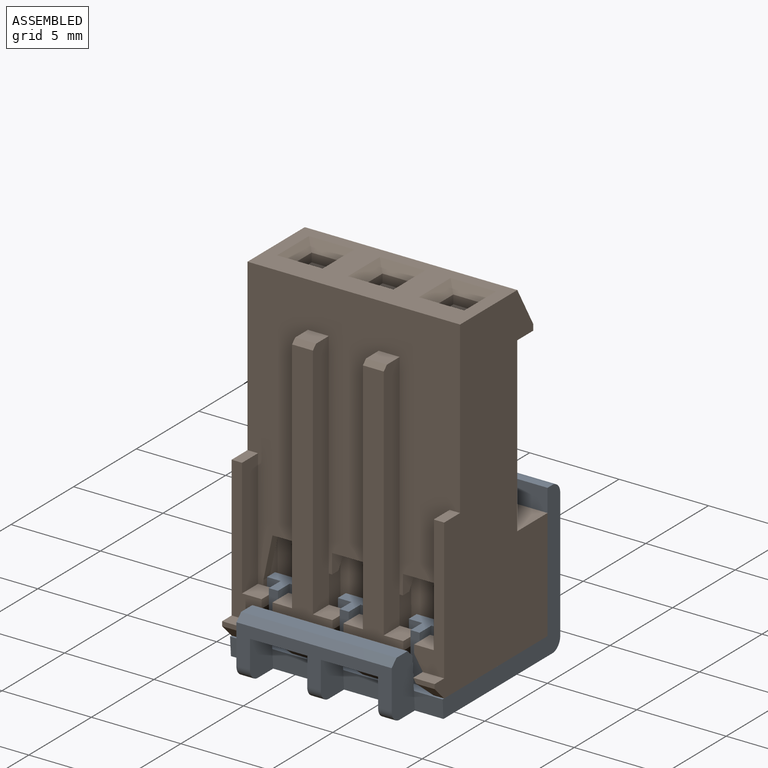
[diagram: assembled view]
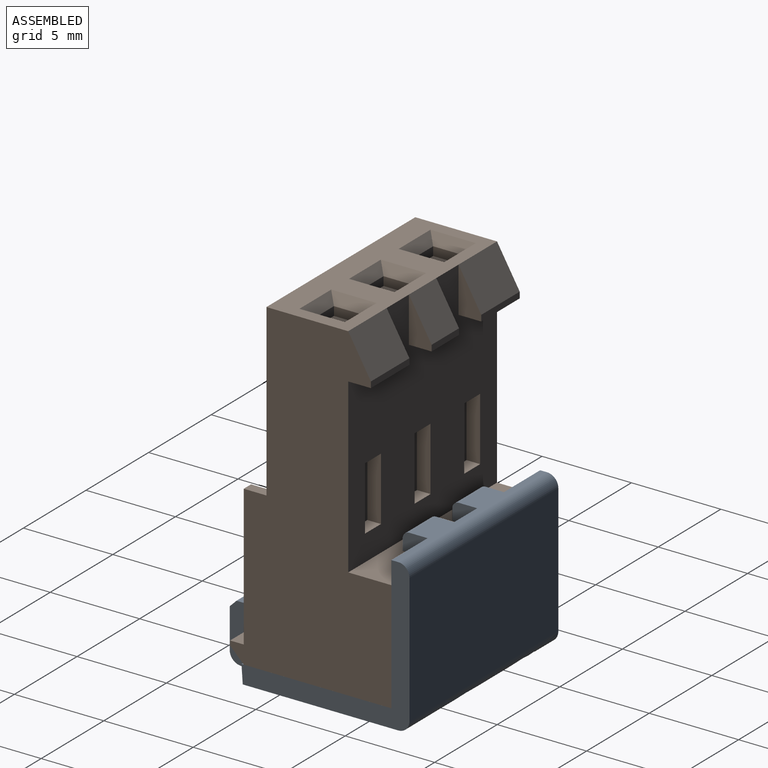
[diagram: assembled view, second angle]
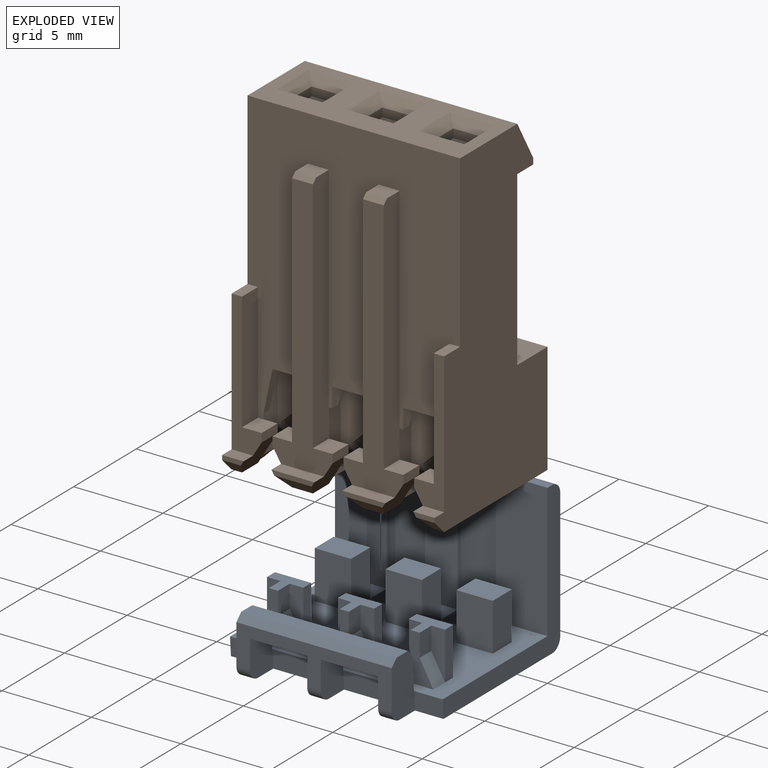
[diagram: exploded view]
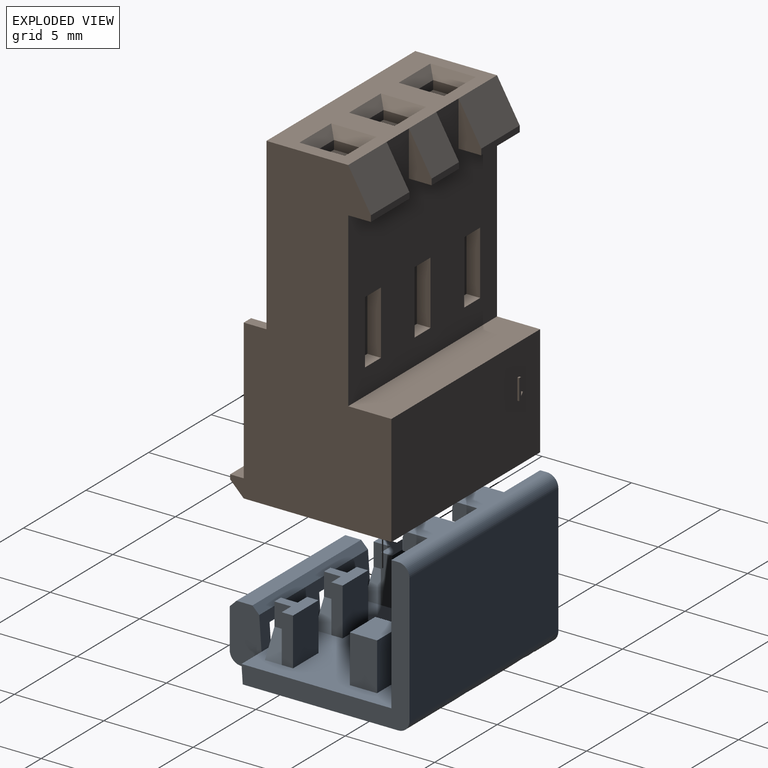
[diagram: exploded view, second angle]
ASSEMBLY  parts=2 mates=3
PART A: 97 faces, bbox 11.9x11.2x8.5 mm
  f0: plane 8.69x2.21mm, normal (0,-1,0), area 9.1mm2, adj f1,f7,f9,f28,f29,f30,f31,f32
  f1: plane 8.69x0.38mm, normal (0,-0.71,0.71), area 4.7mm2, adj f0,f2,f28,f36
  f2: plane 8.69x0.89mm, normal (0,0,1), area 7.7mm2, adj f1,f8,f28,f36
  f3: plane 2.13x1.53mm, normal (0,0,-1), area 3.3mm2, adj f4,f38,f39,f41,f54,f56
  f4: plane 2.13x0.64mm, normal (0,-1,0), area 1.4mm2, adj f3,f39,f40,f41
  f5: plane 2.13x0.64mm, normal (0,-1,0), area 1.4mm2, adj f6,f42,f43,f44
  f6: plane 2.13x1.53mm, normal (0,0,-1), area 3.3mm2, adj f5,f37,f43,f44,f45,f47
  f7: plane 3.2x1.7mm, normal (0,0,-1), area 5.4mm2, adj f0,f33,f34,f50
  f8: plane 8.69x0.38mm, normal (0,0.71,0.71), area 4.7mm2, adj f2,f28,f36,f50
  f9: plane 3.2x1.7mm, normal (0,0,-1), area 5.4mm2, adj f0,f30,f31,f50
  f10: plane 2.03x1.52mm, normal (0,0,1), area 3.1mm2, adj f58,f59,f60,f61
  f11: plane 2.03x1.52mm, normal (0,0,1), area 3.1mm2, adj f62,f63,f64,f65
  f12: plane 2.03x1.52mm, normal (0,0,1), area 3.1mm2, adj f66,f67,f68,f69
  f13: plane 2.67x0.76mm, normal (0,-1,0), area 1.5mm2, adj f14,f15,f72,f73
  f14: plane 1.27x0.94mm, normal (1,0,0), area 1.2mm2, adj f13,f15,f73,f74
  f15: plane 2.03x1.58mm, normal (0,0,1), area 1.8mm2, adj f13,f14,f16,f17,f70,f71,f72,f74
  f16: plane 2.67x0.76mm, normal (0,-1,0), area 1.5mm2, adj f15,f17,f70,f75
  f17: plane 1.27x0.94mm, normal (-1,0,0), area 1.2mm2, adj f15,f16,f74,f75
  f18: plane 2.67x0.76mm, normal (0,-1,0), area 1.5mm2, adj f19,f22,f76,f77
  f19: plane 1.27x0.94mm, normal (1,0,0), area 1.2mm2, adj f18,f22,f77,f78
  f20: plane 1.27x0.94mm, normal (-1,0,0), area 1.2mm2, adj f21,f22,f78,f79
  f21: plane 2.67x0.76mm, normal (0,-1,0), area 1.5mm2, adj f20,f22,f79,f80
  f22: plane 2.03x1.58mm, normal (0,0,1), area 1.8mm2, adj f18,f19,f20,f21,f76,f78,f80,f81
  f23: plane 2.67x0.76mm, normal (0,-1,0), area 1.5mm2, adj f24,f27,f82,f83
  f24: plane 1.27x0.94mm, normal (1,0,0), area 1.2mm2, adj f23,f27,f83,f84
  f25: plane 1.27x0.94mm, normal (-1,0,0), area 1.2mm2, adj f26,f27,f84,f85
  f26: plane 2.67x0.76mm, normal (0,-1,0), area 1.5mm2, adj f25,f27,f85,f86
  f27: plane 2.03x1.58mm, normal (0,0,1), area 1.8mm2, adj f23,f24,f25,f26,f82,f84,f86,f87
  f28: plane 3.23x1.85mm, normal (1,0,0), area 5.4mm2, adj f0,f1,f2,f8,f29,f50,f51,f89
  f29: revolved ~0.76x0.64mm, area 0.8mm2, adj f0,f28,f30,f89
  f30: plane 2.21x1.85mm, normal (-1,0,0), area 3.8mm2, adj f0,f9,f29,f49,f50,f89
  f31: plane 2.21x1.85mm, normal (1,0,0), area 3.8mm2, adj f0,f9,f32,f49,f50,f89
  f32: revolved ~0.76x0.64mm, area 0.8mm2, adj f0,f31,f33,f89
  f33: plane 2.21x1.85mm, normal (-1,0,0), area 3.8mm2, adj f0,f7,f32,f48,f50,f89
  f34: plane 2.21x1.85mm, normal (1,0,0), area 3.8mm2, adj f0,f7,f35,f48,f50,f89
  f35: revolved ~0.76x0.64mm, area 0.8mm2, adj f0,f34,f36,f89
  f36: plane 3.23x1.85mm, normal (-1,0,0), area 5.4mm2, adj f0,f1,f2,f8,f35,f50,f88,f89
  f37: plane 7.49x2.13mm, normal (0,-1,-0.03), area 16mm2, adj f6,f45,f47,f90
  f38: plane 7.49x2.13mm, normal (0,-1,-0.03), area 16mm2, adj f3,f54,f56,f90
  f39: plane 1.4x1.02mm, normal (-1,0,0), area 1.4mm2, adj f3,f4,f40,f57,f93
  f40: revolved ~2.13x0.38mm, area 1.3mm2, adj f4,f39,f41,f93
  f41: plane 1.4x1.02mm, normal (1,0,0), area 1.4mm2, adj f3,f4,f40,f53,f93
  f42: revolved ~2.13x0.38mm, area 1.3mm2, adj f5,f43,f44,f93
  f43: plane 1.4x1.02mm, normal (1,0,0), area 1.4mm2, adj f5,f6,f42,f57,f93
  f44: plane 1.4x1.02mm, normal (-1,0,0), area 1.4mm2, adj f5,f6,f42,f93,f94
  f45: plane 7.49x1.78mm, normal (-1,0,0), area 3.3mm2, adj f6,f37,f46,f57,f89,f95
  f46: plane 2.13x1.02mm, normal (0,1,0), area 2.2mm2, adj f45,f47,f89,f95
  f47: plane 7.49x1.78mm, normal (1,0,0), area 3.3mm2, adj f6,f37,f46,f89,f94,f95
  f48: plane 3.2x1.02mm, normal (0,-1,-0.07), area 3.3mm2, adj f33,f34,f89,f95
  f49: plane 3.2x1.02mm, normal (0,-1,-0.07), area 3.3mm2, adj f30,f31,f89,f95
  f50: plane 8.69x1.83mm, normal (0,1,0.07), area 8.3mm2, adj f7,f8,f9,f28,f30,f31,f33,f34
  f51: plane 1.6x1.02mm, normal (0,-1,-0.07), area 1.6mm2, adj f28,f52,f89,f95
  f52: plane 9.4x8.51mm, normal (1,0,0), area 17mm2, adj f51,f53,f89,f90,f91,f92,f93,f95
  f53: plane 7.49x2.9mm, normal (0,-1,0), area 21.7mm2, adj f41,f52,f54,f93,f95
  f54: plane 7.49x1.78mm, normal (-1,0,0), area 3.3mm2, adj f3,f38,f53,f55,f89,f95
  f55: plane 2.13x1.02mm, normal (0,1,0), area 2.2mm2, adj f54,f56,f89,f95
  f56: plane 7.49x1.78mm, normal (1,0,0), area 3.3mm2, adj f3,f38,f55,f57,f89,f95
  f57: plane 7.49x1.83mm, normal (0,-1,0), area 13.7mm2, adj f39,f43,f45,f56,f93,f95
  f58: plane 2.67x1.52mm, normal (-1,0,0), area 4.1mm2, adj f10,f59,f61,f95
  f59: plane 2.67x2.03mm, normal (0,1,0), area 5.4mm2, adj f10,f58,f60,f95
  f60: plane 2.67x1.52mm, normal (1,0,0), area 4.1mm2, adj f10,f59,f61,f95
  f61: plane 2.67x2.03mm, normal (0,-1,0), area 5.4mm2, adj f10,f58,f60,f95
  f62: plane 2.67x1.52mm, normal (-1,0,0), area 4.1mm2, adj f11,f63,f65,f95
  f63: plane 2.67x2.03mm, normal (0,1,0), area 5.4mm2, adj f11,f62,f64,f95
  f64: plane 2.67x1.52mm, normal (1,0,0), area 4.1mm2, adj f11,f63,f65,f95
  f65: plane 2.67x2.03mm, normal (0,-1,0), area 5.4mm2, adj f11,f62,f64,f95
  f66: plane 2.67x1.52mm, normal (-1,0,0), area 4.1mm2, adj f12,f67,f69,f95
  f67: plane 2.67x2.03mm, normal (0,1,0), area 5.4mm2, adj f12,f66,f68,f95
  f68: plane 2.67x1.52mm, normal (1,0,0), area 4.1mm2, adj f12,f67,f69,f95
  f69: plane 2.67x2.03mm, normal (0,-1,0), area 5.4mm2, adj f12,f66,f68,f95
  f70: plane 2.67x0.64mm, normal (-1,0,0), area 1.7mm2, adj f15,f16,f71,f95
  f71: plane 2.67x2.03mm, normal (0,1,0), area 5.4mm2, adj f15,f70,f72,f95
  f72: plane 2.67x0.64mm, normal (1,0,0), area 1.7mm2, adj f13,f15,f71,f95
  f73: plane 1.4x0.94mm, normal (0.88,0,0.48), area 1.5mm2, adj f13,f14,f74,f95
  f74: plane 2.67x2.03mm, normal (0,-1,0), area 2.4mm2, adj f14,f15,f17,f73,f75,f95
  f75: plane 1.4x0.94mm, normal (-0.88,0,0.48), area 1.5mm2, adj f16,f17,f74,f95
  f76: plane 2.67x0.64mm, normal (1,0,0), area 1.7mm2, adj f18,f22,f81,f95
  f77: plane 1.4x0.94mm, normal (0.88,0,0.48), area 1.5mm2, adj f18,f19,f78,f95
  f78: plane 2.67x2.03mm, normal (0,-1,0), area 2.4mm2, adj f19,f20,f22,f77,f79,f95
  f79: plane 1.4x0.94mm, normal (-0.88,0,0.48), area 1.5mm2, adj f20,f21,f78,f95
  f80: plane 2.67x0.64mm, normal (-1,0,0), area 1.7mm2, adj f21,f22,f81,f95
  f81: plane 2.67x2.03mm, normal (0,1,0), area 5.4mm2, adj f22,f76,f80,f95
  f82: plane 2.67x0.64mm, normal (1,0,0), area 1.7mm2, adj f23,f27,f87,f95
  f83: plane 1.4x0.94mm, normal (0.88,0,0.48), area 1.5mm2, adj f23,f24,f84,f95
  f84: plane 2.67x2.03mm, normal (0,-1,0), area 2.4mm2, adj f24,f25,f27,f83,f85,f95
  f85: plane 1.4x0.94mm, normal (-0.88,0,0.48), area 1.5mm2, adj f25,f26,f84,f95
  f86: plane 2.67x0.64mm, normal (-1,0,0), area 1.7mm2, adj f26,f27,f87,f95
  f87: plane 2.67x2.03mm, normal (0,1,0), area 5.4mm2, adj f27,f82,f86,f95
  f88: plane 1.6x1.02mm, normal (0,-1,-0.07), area 1.6mm2, adj f36,f89,f95,f96
  f89: plane 11.89x9.91mm, normal (0,0,-1), area 98.5mm2, adj f28,f29,f30,f31,f32,f33,f34,f35
  f90: revolved ~11.89x0.64mm, area 11.9mm2, adj f37,f38,f52,f89,f91,f96
  f91: plane 11.89x7.24mm, normal (0,1,0), area 86.1mm2, adj f52,f90,f92,f96
  f92: revolved ~11.89x0.64mm, area 11.9mm2, adj f52,f91,f93,f96
  f93: plane 11.89x1.4mm, normal (0,0,1), area 8.9mm2, adj f39,f40,f41,f42,f43,f44,f52,f53
  f94: plane 7.49x2.9mm, normal (0,-1,0), area 21.7mm2, adj f44,f47,f93,f95,f96
  f95: plane 11.89x8.38mm, normal (0,0,1), area 74.8mm2, adj f45,f46,f47,f48,f49,f50,f51,f52
  f96: plane 9.4x8.51mm, normal (-1,0,0), area 16.9mm2, adj f88,f89,f90,f91,f92,f93,f94,f95
PART B: 291 faces, bbox 11.9x9.1x18.4 mm
  f0: plane 0.32x0.15mm, normal (0,0,-1), area 0mm2, adj f8,f9,f78,f79
  f1: plane 0.32x0.15mm, normal (0,0,-1), area 0mm2, adj f20,f21,f81,f83
  f2: plane 0.32x0.15mm, normal (0,0,-1), area 0mm2, adj f26,f27,f89,f90
  f3: plane 0.32x0.15mm, normal (0,0,-1), area 0mm2, adj f38,f39,f92,f94
  f4: plane 0.32x0.15mm, normal (0,0,-1), area 0mm2, adj f44,f45,f100,f101
  f5: plane 0.32x0.15mm, normal (0,0,-1), area 0mm2, adj f56,f57,f103,f105
  f6: plane 0.58x0.58mm, normal (-0.71,0,-0.71), area 0.3mm2, adj f7,f76,f78,f79
  f7: plane 1.78x0.34mm, normal (-1,0,0), area 0.6mm2, adj f6,f8,f78,f79
  f8: plane 0.76x0.33mm, normal (-0.93,0,-0.36), area 0.3mm2, adj f0,f7,f78,f79
  f9: plane 0.76x0.33mm, normal (0.93,0,-0.36), area 0.3mm2, adj f0,f10,f78,f79
  f10: plane 1.78x0.34mm, normal (1,0,0), area 0.6mm2, adj f9,f11,f78,f79
  f11: plane 0.58x0.58mm, normal (0.71,0,-0.71), area 0.3mm2, adj f10,f77,f78,f79
  f12: revolved ~0.7x0.69mm, area 0.7mm2, adj f13,f76,f78,f80
  f13: plane 1.14x0.64mm, normal (0,0,-1), area 0.7mm2, adj f12,f17,f76,f80
  f14: revolved ~0.7x0.69mm, area 0.7mm2, adj f15,f77,f78,f82
  f15: plane 1.14x0.64mm, normal (0,0,-1), area 0.7mm2, adj f14,f16,f77,f82
  f16: revolved ~0.7x0.7mm, area 0.7mm2, adj f15,f77,f82,f83
  f17: revolved ~0.7x0.7mm, area 0.7mm2, adj f13,f76,f80,f83
  f18: plane 0.58x0.58mm, normal (-0.71,0,-0.71), area 0.3mm2, adj f19,f76,f81,f83
  f19: plane 1.78x0.32mm, normal (-1,0,0), area 0.6mm2, adj f18,f20,f81,f83
  f20: plane 0.76x0.32mm, normal (-0.93,0,-0.36), area 0.3mm2, adj f1,f19,f81,f83
  f21: plane 0.76x0.32mm, normal (0.93,0,-0.36), area 0.3mm2, adj f1,f22,f81,f83
  f22: plane 1.78x0.32mm, normal (1,0,0), area 0.6mm2, adj f21,f23,f81,f83
  f23: plane 0.58x0.58mm, normal (0.71,0,-0.71), area 0.3mm2, adj f22,f77,f81,f83
  f24: plane 0.58x0.58mm, normal (-0.71,0,-0.71), area 0.3mm2, adj f25,f88,f89,f90
  f25: plane 1.78x0.34mm, normal (-1,0,0), area 0.6mm2, adj f24,f26,f89,f90
  f26: plane 0.76x0.33mm, normal (-0.93,0,-0.36), area 0.3mm2, adj f2,f25,f89,f90
  f27: plane 0.76x0.33mm, normal (0.93,0,-0.36), area 0.3mm2, adj f2,f28,f89,f90
  f28: plane 1.78x0.34mm, normal (1,0,0), area 0.6mm2, adj f27,f29,f89,f90
  f29: plane 0.58x0.58mm, normal (0.71,0,-0.71), area 0.3mm2, adj f28,f87,f89,f90
  f30: revolved ~0.7x0.69mm, area 0.7mm2, adj f31,f88,f89,f91
  f31: plane 1.14x0.64mm, normal (0,0,-1), area 0.7mm2, adj f30,f35,f88,f91
  f32: revolved ~0.7x0.69mm, area 0.7mm2, adj f33,f87,f89,f93
  f33: plane 1.14x0.64mm, normal (0,0,-1), area 0.7mm2, adj f32,f34,f87,f93
  f34: revolved ~0.7x0.7mm, area 0.7mm2, adj f33,f87,f93,f94
  f35: revolved ~0.7x0.7mm, area 0.7mm2, adj f31,f88,f91,f94
  f36: plane 0.58x0.58mm, normal (-0.71,0,-0.71), area 0.3mm2, adj f37,f88,f92,f94
  f37: plane 1.78x0.32mm, normal (-1,0,0), area 0.6mm2, adj f36,f38,f92,f94
  f38: plane 0.76x0.32mm, normal (-0.93,0,-0.36), area 0.3mm2, adj f3,f37,f92,f94
  f39: plane 0.76x0.32mm, normal (0.93,0,-0.36), area 0.3mm2, adj f3,f40,f92,f94
  f40: plane 1.78x0.32mm, normal (1,0,0), area 0.6mm2, adj f39,f41,f92,f94
  f41: plane 0.58x0.58mm, normal (0.71,0,-0.71), area 0.3mm2, adj f40,f87,f92,f94
  f42: plane 0.58x0.58mm, normal (-0.71,0,-0.71), area 0.3mm2, adj f43,f98,f100,f101
  f43: plane 1.78x0.34mm, normal (-1,0,0), area 0.6mm2, adj f42,f44,f100,f101
  f44: plane 0.76x0.33mm, normal (-0.93,0,-0.36), area 0.3mm2, adj f4,f43,f100,f101
  f45: plane 0.76x0.33mm, normal (0.93,0,-0.36), area 0.3mm2, adj f4,f46,f100,f101
  f46: plane 1.78x0.34mm, normal (1,0,0), area 0.6mm2, adj f45,f47,f100,f101
  f47: plane 0.58x0.58mm, normal (0.71,0,-0.71), area 0.3mm2, adj f46,f99,f100,f101
  f48: revolved ~0.7x0.69mm, area 0.7mm2, adj f49,f98,f100,f102
  f49: plane 1.14x0.64mm, normal (0,0,-1), area 0.7mm2, adj f48,f53,f98,f102
  f50: revolved ~0.7x0.69mm, area 0.7mm2, adj f51,f99,f100,f104
  f51: plane 1.14x0.64mm, normal (0,0,-1), area 0.7mm2, adj f50,f52,f99,f104
  f52: revolved ~0.7x0.7mm, area 0.7mm2, adj f51,f99,f104,f105
  f53: revolved ~0.7x0.7mm, area 0.7mm2, adj f49,f98,f102,f105
  f54: plane 0.58x0.58mm, normal (-0.71,0,-0.71), area 0.3mm2, adj f55,f98,f103,f105
  f55: plane 1.78x0.32mm, normal (-1,0,0), area 0.6mm2, adj f54,f56,f103,f105
  f56: plane 0.76x0.32mm, normal (-0.93,0,-0.36), area 0.3mm2, adj f5,f55,f103,f105
  f57: plane 0.76x0.32mm, normal (0.93,0,-0.36), area 0.3mm2, adj f5,f58,f103,f105
  f58: plane 1.78x0.32mm, normal (1,0,0), area 0.6mm2, adj f57,f59,f103,f105
  f59: plane 0.58x0.58mm, normal (0.71,0,-0.71), area 0.3mm2, adj f58,f99,f103,f105
  f60: revolved ~0.64x0.37mm, area 0.3mm2, adj f98,f101,f102,f110
  f61: revolved ~0.64x0.37mm, area 0.3mm2, adj f98,f102,f103,f112
  f62: revolved ~0.64x0.37mm, area 0.3mm2, adj f99,f101,f104,f117
  f63: revolved ~0.64x0.37mm, area 0.3mm2, adj f99,f103,f104,f119
  f64: revolved ~0.64x0.37mm, area 0.3mm2, adj f88,f90,f91,f131
  f65: revolved ~0.64x0.37mm, area 0.3mm2, adj f88,f91,f92,f133
  f66: revolved ~0.64x0.37mm, area 0.3mm2, adj f87,f90,f93,f139
  f67: revolved ~0.64x0.37mm, area 0.3mm2, adj f87,f92,f93,f141
  f68: revolved ~0.64x0.37mm, area 0.3mm2, adj f76,f79,f80,f153
  f69: revolved ~0.64x0.37mm, area 0.3mm2, adj f76,f80,f81,f155
  f70: revolved ~0.64x0.37mm, area 0.3mm2, adj f77,f79,f82,f159
  f71: revolved ~0.64x0.37mm, area 0.3mm2, adj f77,f81,f82,f161
  f72: plane 1.52x1.52mm, normal (0,0,1), area 2.3mm2, adj f177,f178,f179,f180
  f73: plane 1.52x1.52mm, normal (0,0,1), area 2.3mm2, adj f181,f182,f183,f184
  f74: plane 1.52x1.52mm, normal (0,0,1), area 2.3mm2, adj f185,f186,f187,f188
  f75: plane 2.39x0.51mm, normal (0,1,0), area 0.6mm2, adj f193,f194,f195
  f76: plane 3.96x2.54mm, normal (-1,0,0), area 7.2mm2, adj f6,f12,f13,f17,f18,f68,f69,f78
  f77: plane 3.96x2.54mm, normal (1,0,0), area 7.2mm2, adj f11,f14,f15,f16,f23,f70,f71,f78
  f78: plane 3.27x3.18mm, normal (0,-1,-0.01), area 7.9mm2, adj f0,f6,f7,f8,f9,f10,f11,f12
  f79: plane 3.26x3.18mm, normal (0,1,0.01), area 7.9mm2, adj f0,f6,f7,f8,f9,f10,f11,f68
  f80: plane 3.96x2.58mm, normal (1,0,0), area 3mm2, adj f12,f13,f17,f68,f69,f78,f79,f81
  f81: plane 3.26x3.18mm, normal (0,-1,0), area 7.9mm2, adj f1,f18,f19,f20,f21,f22,f23,f69
  f82: plane 3.96x2.58mm, normal (-1,0,0), area 3mm2, adj f14,f15,f16,f70,f71,f78,f79,f81
  f83: plane 3.26x3.18mm, normal (0,1,0), area 7.9mm2, adj f1,f16,f17,f18,f19,f20,f21,f22
  f84: plane 1.27x1.09mm, normal (0,0,1), area 1.4mm2, adj f145,f148,f149,f197
  f85: plane 1.27x1.09mm, normal (0,0,1), area 1.4mm2, adj f143,f144,f145,f199
  f86: plane 1.17x0.25mm, normal (0,-0.71,0.71), area 0.4mm2, adj f145,f197,f198,f199
  f87: plane 3.96x2.54mm, normal (1,0,0), area 7.2mm2, adj f29,f32,f33,f34,f41,f66,f67,f89
  f88: plane 3.96x2.54mm, normal (-1,0,0), area 7.2mm2, adj f24,f30,f31,f35,f36,f64,f65,f89
  f89: plane 3.27x3.18mm, normal (0,-1,-0.01), area 7.9mm2, adj f2,f24,f25,f26,f27,f28,f29,f30
  f90: plane 3.26x3.18mm, normal (0,1,0.01), area 7.9mm2, adj f2,f24,f25,f26,f27,f28,f29,f64
  f91: plane 3.96x2.58mm, normal (1,0,0), area 3mm2, adj f30,f31,f35,f64,f65,f89,f90,f92
  f92: plane 3.26x3.18mm, normal (0,-1,0), area 7.9mm2, adj f3,f36,f37,f38,f39,f40,f41,f65
  f93: plane 3.96x2.58mm, normal (-1,0,0), area 3mm2, adj f32,f33,f34,f66,f67,f89,f90,f92
  f94: plane 3.26x3.18mm, normal (0,1,0), area 7.9mm2, adj f3,f34,f35,f36,f37,f38,f39,f40
  f95: plane 1.27x1.09mm, normal (0,0,1), area 1.4mm2, adj f123,f126,f127,f203
  f96: plane 1.27x1.09mm, normal (0,0,1), area 1.4mm2, adj f121,f122,f123,f205
  f97: plane 1.17x0.25mm, normal (0,-0.71,0.71), area 0.4mm2, adj f123,f203,f204,f205
  f98: plane 3.96x2.54mm, normal (-1,0,0), area 7.2mm2, adj f42,f48,f49,f53,f54,f60,f61,f100
  f99: plane 3.96x2.54mm, normal (1,0,0), area 7.2mm2, adj f47,f50,f51,f52,f59,f62,f63,f100
  f100: plane 3.27x3.18mm, normal (0,-1,-0.01), area 7.9mm2, adj f4,f42,f43,f44,f45,f46,f47,f48
  f101: plane 3.26x3.18mm, normal (0,1,0.01), area 7.9mm2, adj f4,f42,f43,f44,f45,f46,f47,f60
  f102: plane 3.96x2.58mm, normal (1,0,0), area 3mm2, adj f48,f49,f53,f60,f61,f100,f101,f103
  f103: plane 3.26x3.18mm, normal (0,-1,0), area 7.9mm2, adj f5,f54,f55,f56,f57,f58,f59,f61
  f104: plane 3.96x2.58mm, normal (-1,0,0), area 3mm2, adj f50,f51,f52,f62,f63,f100,f101,f103
  f105: plane 3.26x3.18mm, normal (0,1,0), area 7.9mm2, adj f5,f52,f53,f54,f55,f56,f57,f58
  f106: plane 2.39x0.51mm, normal (0,1,0), area 0.6mm2, adj f189,f207,f208
  f107: plane 0.84x0.56mm, normal (0,0.87,-0.5), area 0.4mm2, adj f108,f189,f213,f214,f282
  f108: plane 4.11x0.56mm, normal (0,1,0), area 2.3mm2, adj f107,f189,f207,f214
  f109: plane 2.68x0.7mm, normal (0,-1,0), area 1.9mm2, adj f98,f110,f207,f214
  f110: plane 0.95x0.7mm, normal (0,-0.97,-0.26), area 0.7mm2, adj f60,f98,f109,f111,f214
  f111: plane 1.3x0.06mm, normal (0,0,-1), area 0.1mm2, adj f102,f110,f112,f214
  f112: plane 0.95x0.7mm, normal (0,0.97,-0.26), area 0.7mm2, adj f61,f98,f111,f113,f214
  f113: plane 2.68x0.7mm, normal (0,1,0), area 1.9mm2, adj f98,f112,f207,f214
  f114: plane 0.51x0.43mm, normal (0,0,-1), area 0.2mm2, adj f115,f122,f206,f216,f277
  f115: plane 1.09x0.63mm, normal (0,0.87,-0.5), area 0.5mm2, adj f114,f206,f207,f216
  f116: plane 2.68x0.7mm, normal (0,-1,0), area 1.9mm2, adj f99,f117,f207,f216
  f117: plane 0.95x0.7mm, normal (0,-0.97,-0.26), area 0.7mm2, adj f62,f99,f116,f118,f216
  f118: plane 1.3x0.06mm, normal (0,0,-1), area 0.1mm2, adj f104,f117,f119,f216
  f119: plane 0.95x0.7mm, normal (0,0.97,-0.26), area 0.7mm2, adj f63,f99,f118,f120,f216
  f120: plane 2.68x0.7mm, normal (0,1,0), area 1.9mm2, adj f99,f119,f207,f216
  f121: plane 1.27x0.48mm, normal (1,0,0), area 0.6mm2, adj f96,f122,f123,f217
  f122: plane 3.86x1.35mm, normal (0,1,0), area 2.5mm2, adj f96,f114,f121,f205,f216,f217,f282
  f123: plane 14.61x3.35mm, normal (0,-1,0), area 19.5mm2, adj f95,f96,f97,f121,f124,f126,f203,f205
  f124: plane 2.4x0.76mm, normal (0,0,1), area 1.8mm2, adj f123,f125,f217,f219
  f125: plane 2.4x0.25mm, normal (0,-1,0), area 0.6mm2, adj f124,f217,f218,f219
  f126: plane 1.27x0.48mm, normal (-1,0,0), area 0.6mm2, adj f95,f123,f127,f219
  f127: plane 3.86x1.35mm, normal (0,1,0), area 2.5mm2, adj f95,f126,f128,f203,f219,f220,f282
  f128: plane 0.51x0.43mm, normal (0,0,-1), area 0.2mm2, adj f127,f129,f202,f220,f277
  f129: plane 1.09x0.63mm, normal (0,0.87,-0.5), area 0.5mm2, adj f128,f201,f202,f220
  f130: plane 2.68x0.7mm, normal (0,-1,0), area 1.9mm2, adj f88,f131,f201,f220
  f131: plane 0.95x0.7mm, normal (0,-0.97,-0.26), area 0.7mm2, adj f64,f88,f130,f132,f220
  f132: plane 1.3x0.06mm, normal (0,0,-1), area 0.1mm2, adj f91,f131,f133,f220
  f133: plane 0.95x0.7mm, normal (0,0.97,-0.26), area 0.7mm2, adj f65,f88,f132,f134,f220
  f134: plane 2.68x0.7mm, normal (0,1,0), area 1.9mm2, adj f88,f133,f201,f220
  f135: plane 3.81x0.33mm, normal (0,-1,0), area 1.3mm2, adj f201,f220,f221,f222
  f136: plane 0.51x0.43mm, normal (0,0,-1), area 0.2mm2, adj f137,f144,f200,f224,f277
  f137: plane 1.09x0.63mm, normal (0,0.87,-0.5), area 0.5mm2, adj f136,f200,f201,f224
  f138: plane 2.68x0.7mm, normal (0,-1,0), area 1.9mm2, adj f87,f139,f201,f224
  f139: plane 0.95x0.7mm, normal (0,-0.97,-0.26), area 0.7mm2, adj f66,f87,f138,f140,f224
  f140: plane 1.3x0.06mm, normal (0,0,-1), area 0.1mm2, adj f93,f139,f141,f224
  f141: plane 0.95x0.7mm, normal (0,0.97,-0.26), area 0.7mm2, adj f67,f87,f140,f142,f224
  f142: plane 2.68x0.7mm, normal (0,1,0), area 1.9mm2, adj f87,f141,f201,f224
  f143: plane 1.27x0.48mm, normal (1,0,0), area 0.6mm2, adj f85,f144,f145,f225
  f144: plane 3.86x1.35mm, normal (0,1,0), area 2.5mm2, adj f85,f136,f143,f199,f224,f225,f282
  f145: plane 14.61x3.35mm, normal (0,-1,0), area 19.5mm2, adj f84,f85,f86,f143,f146,f148,f197,f199
  f146: plane 2.4x0.76mm, normal (0,0,1), area 1.8mm2, adj f145,f147,f225,f227
  f147: plane 2.4x0.25mm, normal (0,-1,0), area 0.6mm2, adj f146,f225,f226,f227
  f148: plane 1.27x0.48mm, normal (-1,0,0), area 0.6mm2, adj f84,f145,f149,f227
  f149: plane 3.86x1.35mm, normal (0,1,0), area 2.5mm2, adj f84,f148,f150,f197,f227,f228,f282
  f150: plane 0.51x0.43mm, normal (0,0,-1), area 0.2mm2, adj f149,f151,f196,f228,f277
  f151: plane 1.09x0.63mm, normal (0,0.87,-0.5), area 0.5mm2, adj f150,f195,f196,f228
  f152: plane 2.68x0.7mm, normal (0,-1,0), area 1.9mm2, adj f76,f153,f195,f228
  f153: plane 0.95x0.7mm, normal (0,-0.97,-0.26), area 0.7mm2, adj f68,f76,f152,f154,f228
  f154: plane 1.3x0.06mm, normal (0,0,-1), area 0.1mm2, adj f80,f153,f155,f228
  f155: plane 0.95x0.7mm, normal (0,0.97,-0.26), area 0.7mm2, adj f69,f76,f154,f156,f228
  f156: plane 2.68x0.7mm, normal (0,1,0), area 1.9mm2, adj f76,f155,f195,f228
  f157: plane 4.11x0.56mm, normal (0,1,0), area 2.3mm2, adj f164,f193,f195,f232
  f158: plane 2.68x0.7mm, normal (0,-1,0), area 1.9mm2, adj f77,f159,f195,f232
  f159: plane 0.95x0.7mm, normal (0,-0.97,-0.26), area 0.7mm2, adj f70,f77,f158,f160,f232
  f160: plane 1.3x0.06mm, normal (0,0,-1), area 0.1mm2, adj f82,f159,f161,f232
  f161: plane 0.95x0.7mm, normal (0,0.97,-0.26), area 0.7mm2, adj f71,f77,f160,f162,f232
  f162: plane 2.68x0.7mm, normal (0,1,0), area 1.9mm2, adj f77,f161,f195,f232
  f163: plane 3.81x0.33mm, normal (0,-1,0), area 1.3mm2, adj f195,f230,f231,f232
  f164: plane 0.84x0.56mm, normal (0,0.87,-0.5), area 0.4mm2, adj f157,f193,f232,f233,f282
  f165: plane 2.29x1.24mm, normal (0,1,0), area 0.9mm2, adj f193,f209,f210,f233,f234,f282
  f166: plane 2.29x1.24mm, normal (0,1,0), area 0.9mm2, adj f167,f189,f190,f213,f236,f282
  f167: plane 1.27x0.48mm, normal (-1,0,0), area 0.6mm2, adj f166,f173,f190,f236
  f168: plane 1.2x0.25mm, normal (0,-1,0), area 0.3mm2, adj f174,f235,f236,f262
  f169: plane 1.17x0.29mm, normal (0,1,0), area 0.2mm2, adj f237,f238,f239,f240,f241,f242,f243
  f170: plane 3.56x1.27mm, normal (0,1,0), area 4.5mm2, adj f249,f250,f251,f252
  f171: plane 3.56x1.27mm, normal (0,1,0), area 4.5mm2, adj f253,f254,f255,f256
  f172: plane 3.56x1.27mm, normal (0,1,0), area 4.5mm2, adj f257,f258,f259,f260
  f173: plane 7.87x1.68mm, normal (0,-1,0), area 5.8mm2, adj f167,f174,f190,f191,f192,f236,f262
  f174: plane 1.2x0.76mm, normal (0,0,1), area 0.9mm2, adj f168,f173,f236,f262
  f175: plane 3.07x0.34mm, normal (0,1,0), area 1mm2, adj f244,f248,f262,f263
  f176: plane 2.18x0.34mm, normal (0,1,0), area 0.7mm2, adj f245,f246,f247,f264
  f177: plane 1.52x0.49mm, normal (1,0,0), area 0.7mm2, adj f72,f178,f180,f265
  f178: plane 1.52x0.49mm, normal (0,-1,0), area 0.7mm2, adj f72,f177,f179,f266
  f179: plane 1.52x0.49mm, normal (-1,0,0), area 0.7mm2, adj f72,f178,f180,f267
  f180: plane 1.52x0.49mm, normal (0,1,0), area 0.7mm2, adj f72,f177,f179,f268
  f181: plane 1.52x0.49mm, normal (1,0,0), area 0.7mm2, adj f73,f182,f184,f269
  f182: plane 1.52x0.49mm, normal (0,-1,0), area 0.7mm2, adj f73,f181,f183,f270
  f183: plane 1.52x0.49mm, normal (-1,0,0), area 0.7mm2, adj f73,f182,f184,f271
  f184: plane 1.52x0.49mm, normal (0,1,0), area 0.7mm2, adj f73,f181,f183,f272
  f185: plane 1.52x0.49mm, normal (1,0,0), area 0.7mm2, adj f74,f186,f188,f273
  f186: plane 1.52x0.49mm, normal (0,-1,0), area 0.7mm2, adj f74,f185,f187,f274
  f187: plane 1.52x0.49mm, normal (-1,0,0), area 0.7mm2, adj f74,f186,f188,f275
  f188: plane 1.52x0.49mm, normal (0,1,0), area 0.7mm2, adj f74,f185,f187,f276
  f189: plane 4.45x1.14mm, normal (-1,0,0), area 3.8mm2, adj f106,f107,f108,f166,f207,f208,f213,f277
  f190: plane 1.27x1.09mm, normal (0,0,1), area 1.4mm2, adj f166,f167,f173,f191,f277
  f191: plane 6.6x1.27mm, normal (-1,0,0), area 8.4mm2, adj f173,f190,f192,f277
  f192: plane 1.27x0.58mm, normal (0,0,1), area 0.7mm2, adj f173,f191,f262,f277
  f193: plane 4.45x1.14mm, normal (1,0,0), area 3.8mm2, adj f75,f157,f164,f165,f194,f195,f233,f277
  f194: plane 2.39x0.51mm, normal (0.98,0,-0.21), area 1.2mm2, adj f75,f193,f195,f277
  f195: plane 6.35x3.3mm, normal (0,0,-1), area 14.2mm2, adj f75,f76,f77,f78,f79,f80,f81,f82
  f196: plane 1.14x1.09mm, normal (-1,0,0), area 0.9mm2, adj f150,f151,f195,f277
  f197: plane 13.59x1.27mm, normal (-1,0,0), area 17.2mm2, adj f84,f86,f145,f149,f198,f277
  f198: plane 1.17x1.02mm, normal (0,0,1), area 1.2mm2, adj f86,f197,f199,f277
  f199: plane 13.59x1.27mm, normal (1,0,0), area 17.2mm2, adj f85,f86,f144,f145,f198,f277
  f200: plane 1.14x1.09mm, normal (1,0,0), area 0.9mm2, adj f136,f137,f201,f277
  f201: plane 6.35x3.3mm, normal (0,0,-1), area 14.6mm2, adj f87,f88,f89,f90,f91,f92,f93,f94
  f202: plane 1.14x1.09mm, normal (-1,0,0), area 0.9mm2, adj f128,f129,f201,f277
  f203: plane 13.59x1.27mm, normal (-1,0,0), area 17.2mm2, adj f95,f97,f123,f127,f204,f277
  f204: plane 1.17x1.02mm, normal (0,0,1), area 1.2mm2, adj f97,f203,f205,f277
  f205: plane 13.59x1.27mm, normal (1,0,0), area 17.2mm2, adj f96,f97,f122,f123,f204,f277
  f206: plane 1.14x1.09mm, normal (1,0,0), area 0.9mm2, adj f114,f115,f207,f277
  f207: plane 6.35x3.3mm, normal (0,0,-1), area 15mm2, adj f98,f99,f100,f101,f102,f103,f104,f105
  f208: plane 2.39x0.51mm, normal (-0.98,0,-0.21), area 1.2mm2, adj f106,f189,f207,f277
  f209: plane 1.27x0.48mm, normal (1,0,0), area 0.6mm2, adj f165,f210,f234,f279
  f210: plane 1.27x1.09mm, normal (0,0,1), area 1.4mm2, adj f165,f209,f211,f277,f279
  f211: plane 6.6x1.27mm, normal (1,0,0), area 8.4mm2, adj f210,f277,f278,f279
  f212: plane 1.2x0.25mm, normal (0,-1,0), area 0.3mm2, adj f234,f280,f281,f290
  f213: plane 0.95x0.51mm, normal (-0.74,0,-0.67), area 0.6mm2, adj f107,f166,f189,f282
  f214: plane 5.69x4.95mm, normal (-1,0,0), area 19.7mm2, adj f107,f108,f109,f110,f111,f112,f113,f207
  f215: plane 4.95x3.3mm, normal (0,-1,0), area 16.4mm2, adj f207,f214,f216,f282
  f216: plane 6.35x4.95mm, normal (1,0,0), area 24.2mm2, adj f114,f115,f116,f117,f118,f119,f120,f122
  f217: plane 2.03x1.8mm, normal (0.86,0,-0.52), area 3.2mm2, adj f121,f122,f123,f124,f125,f218,f282
  f218: plane 2.09x0.76mm, normal (0,-0.71,-0.71), area 1.8mm2, adj f125,f217,f219,f282
  f219: plane 2.03x1.8mm, normal (-0.86,0,-0.52), area 3.2mm2, adj f123,f124,f125,f126,f127,f218,f282
  f220: plane 4.95x4.47mm, normal (-1,0,0), area 12mm2, adj f127,f128,f129,f130,f131,f132,f133,f134
  f221: plane 1.14x0.66mm, normal (0,-0.87,-0.5), area 0.4mm2, adj f135,f220,f222,f282
  f222: plane 4.95x2.54mm, normal (-1,0,0), area 12.2mm2, adj f135,f201,f221,f223,f282
  f223: plane 4.95x2.97mm, normal (0,-1,0), area 14.7mm2, adj f201,f222,f224,f282
  f224: plane 6.35x4.95mm, normal (1,0,0), area 24.2mm2, adj f136,f137,f138,f139,f140,f141,f142,f144
  f225: plane 2.03x1.8mm, normal (0.86,0,-0.52), area 3.2mm2, adj f143,f144,f145,f146,f147,f226,f282
  f226: plane 2.09x0.76mm, normal (0,-0.71,-0.71), area 1.8mm2, adj f147,f225,f227,f282
  f227: plane 2.03x1.8mm, normal (-0.86,0,-0.52), area 3.2mm2, adj f145,f146,f147,f148,f149,f226,f282
  f228: plane 6.35x4.95mm, normal (-1,0,0), area 24.2mm2, adj f149,f150,f151,f152,f153,f154,f155,f156
  f229: plane 4.95x2.97mm, normal (0,-1,0), area 14.7mm2, adj f195,f228,f230,f282
  f230: plane 4.95x2.54mm, normal (1,0,0), area 12.2mm2, adj f163,f195,f229,f231,f282
  f231: plane 1.14x0.66mm, normal (0,-0.87,-0.5), area 0.4mm2, adj f163,f230,f232,f282
  f232: plane 4.95x3.81mm, normal (1,0,0), area 7.5mm2, adj f157,f158,f159,f160,f161,f162,f163,f164
  f233: plane 0.95x0.51mm, normal (0.74,0,-0.67), area 0.6mm2, adj f164,f165,f193,f282
  f234: plane 2.03x1.8mm, normal (0.86,0,-0.52), area 3.2mm2, adj f165,f209,f212,f279,f280,f281,f282
  f235: plane 1.05x0.76mm, normal (0,-0.71,-0.71), area 0.9mm2, adj f168,f236,f262,f282
  f236: plane 2.03x1.8mm, normal (-0.86,0,-0.52), area 3.2mm2, adj f166,f167,f168,f173,f174,f235,f282
  f237: plane 1.17x0.1mm, normal (1,0,0), area 0.1mm2, adj f169,f238,f243,f283
  f238: plane 0.15x0.1mm, normal (0,0,1), area 0mm2, adj f169,f237,f239,f283
  f239: plane 0.97x0.1mm, normal (-1,0,0), area 0.1mm2, adj f169,f238,f240,f283
  f240: plane 0.17x0.15mm, normal (0.77,0,0.64), area 0mm2, adj f169,f239,f241,f283
  f241: plane 0.2x0.1mm, normal (-1,0,0), area 0mm2, adj f169,f240,f242,f283
  f242: plane 0.17x0.15mm, normal (-0.77,0,-0.64), area 0mm2, adj f169,f241,f243,f283
  f243: plane 0.15x0.1mm, normal (0,0,-1), area 0mm2, adj f169,f237,f242,f283
  f244: plane 3.07x1.27mm, normal (0,0,-1), area 3.9mm2, adj f175,f248,f262,f285
  f245: plane 2.54x1.27mm, normal (-1,0,0), area 1.8mm2, adj f176,f246,f264,f285
  f246: plane 2.18x1.27mm, normal (0,0,-1), area 2.8mm2, adj f176,f245,f247,f285
  f247: plane 2.54x1.27mm, normal (1,0,0), area 1.8mm2, adj f176,f246,f264,f285
  f248: plane 2.54x1.27mm, normal (-1,0,0), area 1.8mm2, adj f175,f244,f263,f285
  f249: plane 3.56x0.76mm, normal (1,0,0), area 2.7mm2, adj f170,f250,f252,f285
  f250: plane 1.27x0.76mm, normal (0,0,1), area 1mm2, adj f170,f249,f251,f285
  f251: plane 3.56x0.76mm, normal (-1,0,0), area 2.7mm2, adj f170,f250,f252,f285
  f252: plane 1.27x0.76mm, normal (0,0,-1), area 1mm2, adj f170,f249,f251,f285
  f253: plane 3.56x0.76mm, normal (1,0,0), area 2.7mm2, adj f171,f254,f256,f285
  f254: plane 1.27x0.76mm, normal (0,0,1), area 1mm2, adj f171,f253,f255,f285
  f255: plane 3.56x0.76mm, normal (-1,0,0), area 2.7mm2, adj f171,f254,f256,f285
  f256: plane 1.27x0.76mm, normal (0,0,-1), area 1mm2, adj f171,f253,f255,f285
  f257: plane 3.56x0.76mm, normal (1,0,0), area 2.7mm2, adj f172,f258,f260,f285
  f258: plane 1.27x0.76mm, normal (0,0,1), area 1mm2, adj f172,f257,f259,f285
  f259: plane 3.56x0.76mm, normal (-1,0,0), area 2.7mm2, adj f172,f258,f260,f285
  f260: plane 1.27x0.76mm, normal (0,0,-1), area 1mm2, adj f172,f257,f259,f285
  f261: plane 2.54x1.27mm, normal (1,0,0), area 1.8mm2, adj f285,f286,f287,f288
  f262: plane 18.42x9.02mm, normal (1,0,0), area 112.8mm2, adj f168,f173,f174,f175,f192,f235,f244,f263
  f263: plane 3.07x2.2mm, normal (0,0.87,0.5), area 7.8mm2, adj f175,f248,f262,f289
  f264: plane 2.2x2.18mm, normal (0,0.87,0.5), area 5.5mm2, adj f176,f245,f247,f289
  f265: plane 2.54x0.51mm, normal (0.71,0,0.71), area 1.5mm2, adj f177,f266,f268,f289
  f266: plane 2.54x0.51mm, normal (0,-0.71,0.71), area 1.5mm2, adj f178,f265,f267,f289
  f267: plane 2.54x0.51mm, normal (-0.71,0,0.71), area 1.5mm2, adj f179,f266,f268,f289
  f268: plane 2.54x0.51mm, normal (0,0.71,0.71), area 1.5mm2, adj f180,f265,f267,f289
  f269: plane 2.54x0.51mm, normal (0.71,0,0.71), area 1.5mm2, adj f181,f270,f272,f289
  f270: plane 2.54x0.51mm, normal (0,-0.71,0.71), area 1.5mm2, adj f182,f269,f271,f289
  f271: plane 2.54x0.51mm, normal (-0.71,0,0.71), area 1.5mm2, adj f183,f270,f272,f289
  f272: plane 2.54x0.51mm, normal (0,0.71,0.71), area 1.5mm2, adj f184,f269,f271,f289
  f273: plane 2.54x0.51mm, normal (0.71,0,0.71), area 1.5mm2, adj f185,f274,f276,f289
  f274: plane 2.54x0.51mm, normal (0,-0.71,0.71), area 1.5mm2, adj f186,f273,f275,f289
  f275: plane 2.54x0.51mm, normal (-0.71,0,0.71), area 1.5mm2, adj f187,f274,f276,f289
  f276: plane 2.54x0.51mm, normal (0,0.71,0.71), area 1.5mm2, adj f188,f273,f275,f289
  f277: plane 16.13x11.89mm, normal (0,-1,0), area 133.5mm2, adj f114,f128,f136,f150,f189,f190,f191,f192
  f278: plane 1.27x0.58mm, normal (0,0,1), area 0.7mm2, adj f211,f277,f279,f290
  f279: plane 7.87x1.68mm, normal (0,-1,0), area 5.8mm2, adj f209,f210,f211,f234,f278,f280,f290
  f280: plane 1.2x0.76mm, normal (0,0,1), area 0.9mm2, adj f212,f234,f279,f290
  f281: plane 1.05x0.76mm, normal (0,-0.71,-0.71), area 0.9mm2, adj f212,f234,f282,f290
  f282: plane 11.89x8.26mm, normal (0,0,-1), area 26mm2, adj f107,f122,f127,f144,f149,f164,f165,f166
  f283: plane 11.89x6.22mm, normal (0,1,0), area 73.8mm2, adj f237,f238,f239,f240,f241,f242,f243,f262
  f284: plane 11.89x2.41mm, normal (0,0,1), area 28.7mm2, adj f262,f283,f285,f290
  f285: plane 12.19x11.89mm, normal (0,1,0), area 110.2mm2, adj f244,f245,f246,f247,f248,f249,f250,f251
  f286: plane 3.07x1.27mm, normal (0,0,-1), area 3.9mm2, adj f261,f285,f287,f290
  f287: plane 3.07x0.34mm, normal (0,1,0), area 1mm2, adj f261,f286,f288,f290
  f288: plane 3.07x2.2mm, normal (0,0.87,0.5), area 7.8mm2, adj f261,f287,f289,f290
  f289: plane 11.89x4.57mm, normal (0,0,1), area 35mm2, adj f262,f263,f264,f265,f266,f267,f268,f269
  f290: plane 18.42x9.02mm, normal (-1,0,0), area 112.8mm2, adj f212,f277,f278,f279,f280,f281,f282,f283
PLACE A t=(17.85,1.74,8.87)mm
PLACE B t=(17.85,-2.63,27.28)mm
MATE planar A.f95 <-> B.f282  axis (0,0,1) through (17.85,-2.62,8.87)mm
MATE planar B.f283 <-> A.f53  axis (0,1,0) through (17.86,1.74,11.98)mm
MATE planar B.f262 <-> A.f52  axis (1,0,0) through (23.79,-2.76,16.87)mm
